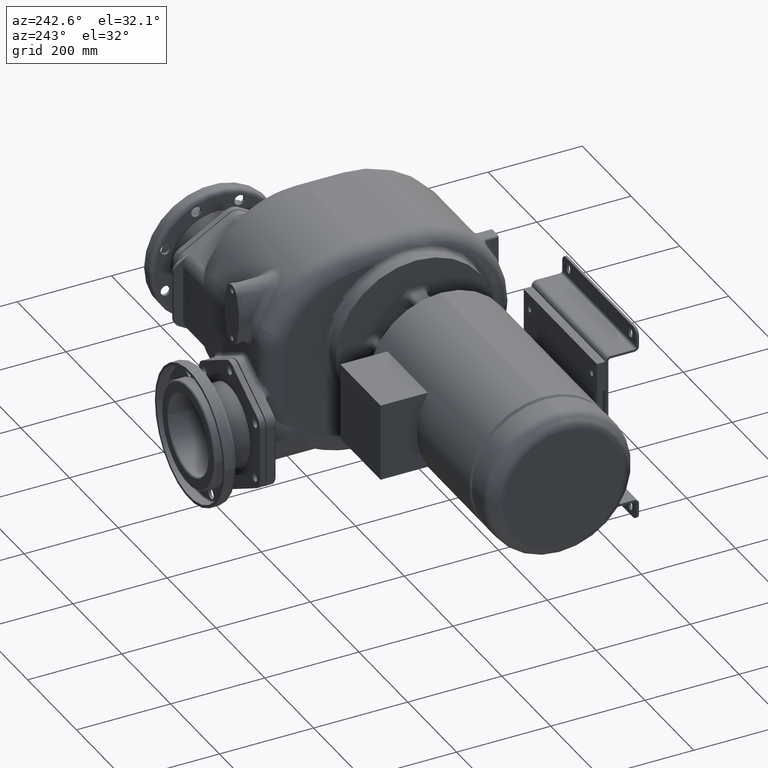
[diagram: clean part render]
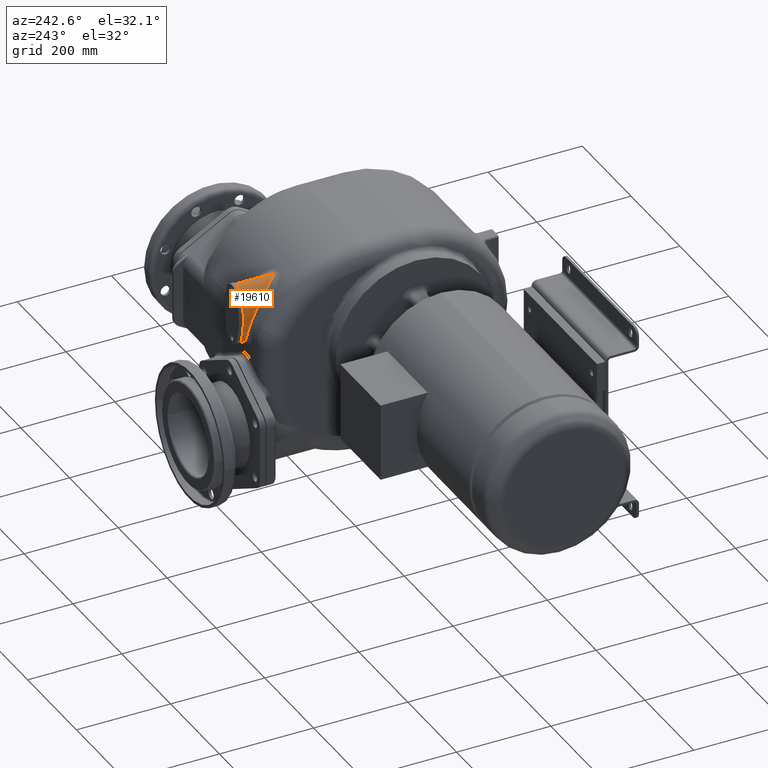
[diagram: same view with one face highlighted and labeled with its STEP entity id]
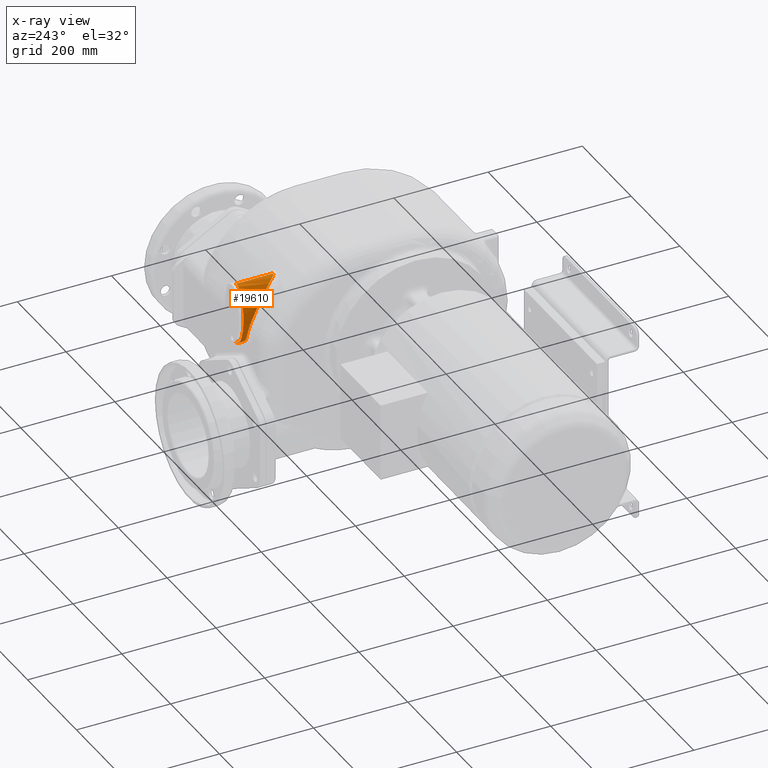
[diagram: x-ray of the same camera — body ghosted, the highlighted face saturated]
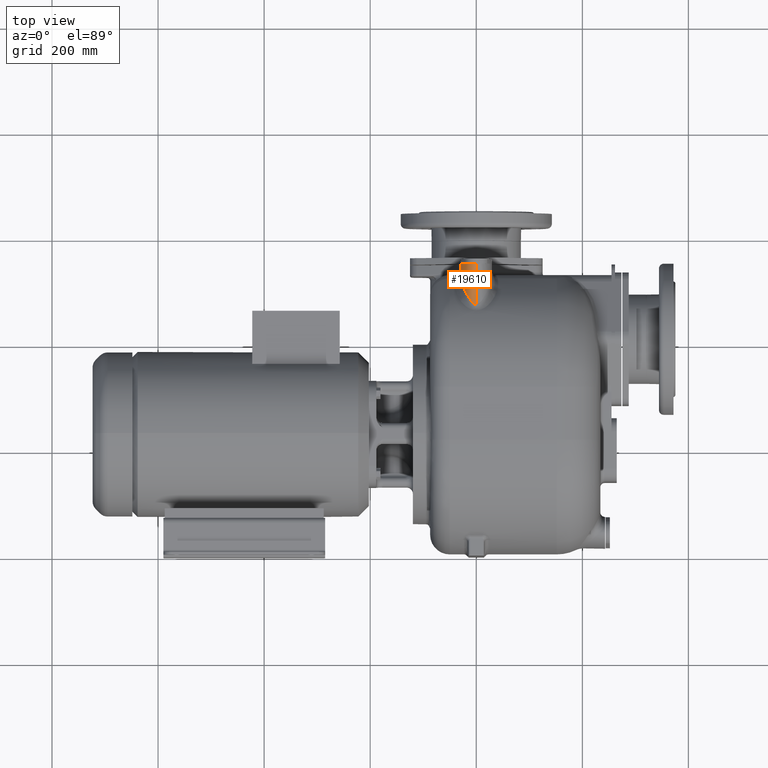
[diagram: same view with one face highlighted and labeled with its STEP entity id]
A machine part, auxiliary view. The second image highlights one B-rep face of the part: STEP entity #19610.
The next image is the same camera in x-ray: the body ghosted, the highlighted face saturated — about 0% of this face is hidden behind the body in this view.
A second angle (top view) of the same face is appended — the face is thin or edge-on in the first view.
In plain terms, the highlighted face is a SurfaceOfExtrusion surface.
Its self-contained STEP definition (entity closure, byte-faithful):
#6510=DIRECTION('',(0.E0,-1.E0,0.E0));
#6511=VECTOR('',#6510,7.818418743185E1);
#6512=CARTESIAN_POINT('',(0.E0,5.5E2,1.44E2));
#6513=LINE('',#6512,#6511);
#6686=CARTESIAN_POINT('',(1.1E2,5.5E2,7.899E1));
#6687=DIRECTION('',(0.E0,1.E0,0.E0));
#6688=DIRECTION('',(-9.980007640518E-1,0.E0,-6.320185877065E-2));
#6689=AXIS2_PLACEMENT_3D('',#6686,#6687,#6688);
#6691=CARTESIAN_POINT('',(-2.942914772399E1,5.5E2,9.161983629991E1));
#6692=CARTESIAN_POINT('',(-2.892675079165E1,5.5E2,9.711974077237E1));
#6693=CARTESIAN_POINT('',(-2.729719698755E1,5.5E2,1.076332457762E2));
#6694=CARTESIAN_POINT('',(-2.299069227191E1,5.5E2,1.219540144419E2));
#6695=CARTESIAN_POINT('',(-1.759648363303E1,5.5E2,1.324826489586E2));
#6696=CARTESIAN_POINT('',(-1.144539888780E1,5.5E2,1.394766608294E2));
#6697=CARTESIAN_POINT('',(-7.423824884960E0,5.5E2,1.422372896684E2));
#6698=CARTESIAN_POINT('',(-4.819624215667E0,5.5E2,1.431556996232E2));
#6700=CARTESIAN_POINT('',(-2.980276015366E1,5.327603322106E2,7.155867891668E1));
#6701=CARTESIAN_POINT('',(-2.984181336860E1,5.324571179187E2,7.229294042404E1));
#6702=CARTESIAN_POINT('',(-2.990825984335E1,5.318413009420E2,7.376244519194E1));
#6703=CARTESIAN_POINT('',(-2.997310292944E1,5.308893100200E2,7.596761138442E1));
#6704=CARTESIAN_POINT('',(-3.000327531571E1,5.299099058500E2,7.816960013735E1));
#6705=CARTESIAN_POINT('',(-2.999906731557E1,5.289038134769E2,8.036498682703E1));
#6706=CARTESIAN_POINT('',(-2.996085890391E1,5.278719041890E2,8.255035201785E1));
#6707=CARTESIAN_POINT('',(-2.988912493039E1,5.268151254800E2,8.472235337604E1));
#6708=CARTESIAN_POINT('',(-2.978442458022E1,5.257345144713E2,8.687783651098E1));
#6709=CARTESIAN_POINT('',(-2.964738873398E1,5.246311395113E2,8.901384289586E1));
#6710=CARTESIAN_POINT('',(-2.947872815919E1,5.235061855625E2,9.112741613059E1));
#6711=CARTESIAN_POINT('',(-2.927919365408E1,5.223607937166E2,9.321603415879E1));
#6712=CARTESIAN_POINT('',(-2.904957718121E1,5.211961129303E2,9.527733482950E1));
#6713=CARTESIAN_POINT('',(-2.879072330873E1,5.200133847464E2,9.730900004536E1));
#6714=CARTESIAN_POINT('',(-2.850350132432E1,5.188138749008E2,9.930895007738E1));
#6715=CARTESIAN_POINT('',(-2.818882751782E1,5.175989035639E2,1.012751300682E2));
#6716=CARTESIAN_POINT('',(-2.784764412670E1,5.163698269975E2,1.032056623192E2));
#6717=CARTESIAN_POINT('',(-2.748086873687E1,5.151279109352E2,1.050990439446E2));
#6718=CARTESIAN_POINT('',(-2.708945136082E1,5.138744463894E2,1.069537698237E2));
#6719=CARTESIAN_POINT('',(-2.667436958679E1,5.126108610604E2,1.087683886317E2));
#6720=CARTESIAN_POINT('',(-2.623664049613E1,5.113386892949E2,1.105414633192E2));
#6721=CARTESIAN_POINT('',(-2.577731577526E1,5.100594635565E2,1.122716132647E2));
#6722=CARTESIAN_POINT('',(-2.529748984771E1,5.087748727803E2,1.139574959974E2));
#6723=CARTESIAN_POINT('',(-2.479830701686E1,5.074866426512E2,1.155978015506E2));
#6724=CARTESIAN_POINT('',(-2.428095859508E1,5.061965334809E2,1.171912851316E2));
#6725=CARTESIAN_POINT('',(-2.374662593377E1,5.049063000506E2,1.187369347298E2));
#6726=CARTESIAN_POINT('',(-2.319655508855E1,5.036177252517E2,1.202337368032E2));
#6727=CARTESIAN_POINT('',(-2.263197754231E1,5.023325158152E2,1.216809169095E2));
#6728=CARTESIAN_POINT('',(-2.205394669988E1,5.010520066074E2,1.230782734664E2));
#6729=CARTESIAN_POINT('',(-2.146359182139E1,4.997775785796E2,1.244254870621E2));
#6730=CARTESIAN_POINT('',(-2.086192838155E1,4.985105005336E2,1.257225800570E2));
#6731=CARTESIAN_POINT('',(-2.024986983191E1,4.972519121350E2,1.269698088666E2));
#6732=CARTESIAN_POINT('',(-1.962837652299E1,4.960029251965E2,1.281673465619E2));
#6733=CARTESIAN_POINT('',(-1.899828010939E1,4.947646737449E2,1.293156277092E2));
#6734=CARTESIAN_POINT('',(-1.836042041408E1,4.935382336508E2,1.304150579164E2));
#6735=CARTESIAN_POINT('',(-1.771560030634E1,4.923246819821E2,1.314661085343E2));
#6736=CARTESIAN_POINT('',(-1.706450084172E1,4.911252124576E2,1.324694316268E2));
#6737=CARTESIAN_POINT('',(-1.640781025517E1,4.899408217480E2,1.334256299375E2));
#6738=CARTESIAN_POINT('',(-1.574642965241E1,4.887733799426E2,1.343350022924E2));
#6739=CARTESIAN_POINT('',(-1.508139182097E1,4.876248381516E2,1.351977416579E2));
#6740=CARTESIAN_POINT('',(-1.441385246225E1,4.864975405490E2,1.360139858966E2));
#6741=CARTESIAN_POINT('',(-1.374530175119E1,4.853944287469E2,1.367836315204E2));
#6742=CARTESIAN_POINT('',(-1.307732355847E1,4.843185306113E2,1.375066849650E2));
#6743=CARTESIAN_POINT('',(-1.241211718966E1,4.832740682813E2,1.381827736175E2));
#6744=CARTESIAN_POINT('',(-1.175205218514E1,4.822651814508E2,1.388117305957E2));
#6745=CARTESIAN_POINT('',(-1.110043195377E1,4.812975858339E2,1.393929558596E2));
#6746=CARTESIAN_POINT('',(-1.046101314678E1,4.803769135038E2,1.399260633070E2));
#6747=CARTESIAN_POINT('',(-9.837793446564E0,4.795089974753E2,1.404110808873E2));
#6748=CARTESIAN_POINT('',(-9.235404259614E0,4.786994391295E2,1.408482138952E2));
#6749=CARTESIAN_POINT('',(-8.656939123607E0,4.779512702810E2,1.412393031133E2));
#6750=CARTESIAN_POINT('',(-8.105924729464E0,4.772670259840E2,1.415862057080E2));
#6751=CARTESIAN_POINT('',(-7.583185117066E0,4.766453989930E2,1.418925955310E2));
#6752=CARTESIAN_POINT('',(-7.089778131690E0,4.760847432101E2,1.421618079012E2));
#6753=CARTESIAN_POINT('',(-6.624656634211E0,4.755810063352E2,1.423980596751E2));
#6754=CARTESIAN_POINT('',(-6.186813384457E0,4.751298562037E2,1.426050860637E2));
#6755=CARTESIAN_POINT('',(-5.774455986600E0,4.747267189273E2,1.427865737748E2));
#6756=CARTESIAN_POINT('',(-5.385610676881E0,4.743665763231E2,1.429458297848E2));
#6757=CARTESIAN_POINT('',(-5.018308189626E0,4.740452231093E2,1.430857474173E2));
#6758=CARTESIAN_POINT('',(-4.670680364855E0,4.737584717195E2,1.432088251513E2));
#6759=CARTESIAN_POINT('',(-4.340578274231E0,4.735024236572E2,1.433173316435E2));
#6760=CARTESIAN_POINT('',(-4.026624510528E0,4.732740737703E2,1.434130058055E2));
#6761=CARTESIAN_POINT('',(-3.726919026015E0,4.730702818816E2,1.434975271929E2));
#6762=CARTESIAN_POINT('',(-3.440028796579E0,4.728884887549E2,1.435722221977E2));
#6763=CARTESIAN_POINT('',(-3.164859321322E0,4.727266591521E2,1.436381781347E2));
#6764=CARTESIAN_POINT('',(-2.899896837693E0,4.725826845095E2,1.436964406436E2));
#6765=CARTESIAN_POINT('',(-2.644220658159E0,4.724549028223E2,1.437477915105E2));
#6766=CARTESIAN_POINT('',(-2.396812269487E0,4.723419443726E2,1.437929417839E2));
#6767=CARTESIAN_POINT('',(-2.156522891514E0,4.722424021403E2,1.438325252326E2));
#6768=CARTESIAN_POINT('',(-1.922812816933E0,4.721552849214E2,1.438669965413E2));
#6769=CARTESIAN_POINT('',(-1.694944229138E0,4.720797512243E2,1.438967891531E2));
#6770=CARTESIAN_POINT('',(-1.472156103357E0,4.720148741764E2,1.439222784815E2));
#6771=CARTESIAN_POINT('',(-1.253655756819E0,4.719599573463E2,1.439437879007E2));
#6772=CARTESIAN_POINT('',(-1.038416859427E0,4.719144079435E2,1.439616007389E2));
#6773=CARTESIAN_POINT('',(-8.259149421599E-1,4.718777421530E2,
1.439758999473E2));
#6774=CARTESIAN_POINT('',(-6.160504716472E-1,4.718497059020E2,
1.439868180095E2));
#6775=CARTESIAN_POINT('',(-4.085678256459E-1,4.718300079735E2,
1.439944843742E2));
#6776=CARTESIAN_POINT('',(-2.032524147134E-1,4.718183559995E2,
1.439990111706E2));
#6777=CARTESIAN_POINT('',(-6.753975180934E-2,4.718158124386E2,
1.439999999574E2));
#6778=CARTESIAN_POINT('',(0.E0,4.718158125682E2,1.44E2));
#6780=CARTESIAN_POINT('',(-2.318278205836E1,5.388098131825E2,3.774456059101E1));
#6781=CARTESIAN_POINT('',(-2.333480329890E1,5.388263534985E2,3.814558746225E1));
#6782=CARTESIAN_POINT('',(-2.363436893442E1,5.388533827406E2,3.895540822590E1));
#6783=CARTESIAN_POINT('',(-2.407021794291E1,5.388748843497E2,4.019327572087E1));
#6784=CARTESIAN_POINT('',(-2.449181533988E1,5.388764064837E2,4.145206877779E1));
#6785=CARTESIAN_POINT('',(-2.489869151958E1,5.388570945872E2,4.273010745548E1));
#6786=CARTESIAN_POINT('',(-2.529042307577E1,5.388162152540E2,4.402565555816E1));
#6787=CARTESIAN_POINT('',(-2.566664984010E1,5.387530685770E2,4.533696015055E1));
#6788=CARTESIAN_POINT('',(-2.602712424398E1,5.386670342008E2,4.666245626003E1));
#6789=CARTESIAN_POINT('',(-2.637170855068E1,5.385575583599E2,4.800083222288E1));
#6790=CARTESIAN_POINT('',(-2.670028421997E1,5.384240960617E2,4.935073084882E1));
#6791=CARTESIAN_POINT('',(-2.701277293730E1,5.382661882885E2,5.071083058415E1));
#6792=CARTESIAN_POINT('',(-2.730912764479E1,5.380834285977E2,5.207982384494E1));
#6793=CARTESIAN_POINT('',(-2.758932908375E1,5.378754288557E2,5.345640499074E1));
#6794=CARTESIAN_POINT('',(-2.785340620550E1,5.376418722377E2,5.483938735637E1));
#6795=CARTESIAN_POINT('',(-2.810141054514E1,5.373824637880E2,5.622760293095E1));
#6796=CARTESIAN_POINT('',(-2.833341687482E1,5.370969327690E2,5.761990788659E1));
#6797=CARTESIAN_POINT('',(-2.854954006254E1,5.367850559691E2,5.901530976681E1));
#6798=CARTESIAN_POINT('',(-2.874990486401E1,5.364466116855E2,6.041281184745E1));
#6799=CARTESIAN_POINT('',(-2.893465228515E1,5.360814070512E2,6.181145217485E1));
#6800=CARTESIAN_POINT('',(-2.910393999139E1,5.356892954156E2,6.321032397529E1));
#6801=CARTESIAN_POINT('',(-2.925793391314E1,5.352701232529E2,6.460851746670E1));
#6802=CARTESIAN_POINT('',(-2.939681345822E1,5.348237720005E2,6.600516535585E1));
#6803=CARTESIAN_POINT('',(-2.952076877239E1,5.343501497338E2,6.739943293753E1));
#6804=CARTESIAN_POINT('',(-2.962999757795E1,5.338491555379E2,6.879048763263E1));
#6805=CARTESIAN_POINT('',(-2.972470592409E1,5.333207468190E2,7.017750254799E1));
#6806=CARTESIAN_POINT('',(-2.977830603842E1,5.329501928862E2,7.109890920482E1));
#6807=CARTESIAN_POINT('',(-2.980276015366E1,5.327603322106E2,7.155867891668E1));
#6809=CARTESIAN_POINT('',(0.E0,5.380005856711E2,1.4E1));
#6810=CARTESIAN_POINT('',(-1.484704678114E-1,5.380003697857E2,
1.400000023231E1));
#6811=CARTESIAN_POINT('',(-4.455869345889E-1,5.380000471032E2,
1.400477767193E1));
#6812=CARTESIAN_POINT('',(-8.914813298439E-1,5.379998883466E2,
1.402630591560E1));
#6813=CARTESIAN_POINT('',(-1.338121580646E0,5.380000521207E2,1.406227818398E1));
#6814=CARTESIAN_POINT('',(-1.785815663958E0,5.380005398978E2,1.411283315115E1));
#6815=CARTESIAN_POINT('',(-2.234925963442E0,5.380013564583E2,1.417816522185E1));
#6816=CARTESIAN_POINT('',(-2.685771105825E0,5.380025082432E2,1.425851956949E1));
#6817=CARTESIAN_POINT('',(-3.138716835823E0,5.380040069706E2,1.435420589405E1));
#6818=CARTESIAN_POINT('',(-3.594061751351E0,5.380058649168E2,1.446557815173E1));
#6819=CARTESIAN_POINT('',(-4.052162559817E0,5.380081001893E2,1.459306104326E1));
#6820=CARTESIAN_POINT('',(-4.513370319311E0,5.380107329429E2,1.473714341009E1));
#6821=CARTESIAN_POINT('',(-4.977983225639E0,5.380137876043E2,1.489835998768E1));
#6822=CARTESIAN_POINT('',(-5.446372131646E0,5.380172933853E2,1.507733732528E1));
#6823=CARTESIAN_POINT('',(-5.918798370297E0,5.380212813952E2,1.527472997610E1));
#6824=CARTESIAN_POINT('',(-6.395598231856E0,5.380257908524E2,1.549129031419E1));
#6825=CARTESIAN_POINT('',(-6.877083219058E0,5.380308619047E2,1.572783907714E1));
#6826=CARTESIAN_POINT('',(-7.363495194736E0,5.380365431806E2,1.598523701697E1));
#6827=CARTESIAN_POINT('',(-7.855175472526E0,5.380428871657E2,1.626447915115E1));
#6828=CARTESIAN_POINT('',(-8.352326573620E0,5.380499508411E2,1.656657037863E1));
#6829=CARTESIAN_POINT('',(-8.855216428369E0,5.380578014832E2,1.689263838914E1));
#6830=CARTESIAN_POINT('',(-9.364092844477E0,5.380665066766E2,1.724389845963E1));
#6831=CARTESIAN_POINT('',(-9.879096990876E0,5.380761465992E2,1.762158748024E1));
#6832=CARTESIAN_POINT('',(-1.040047612803E1,5.380868042462E2,1.802712264953E1));
#6833=CARTESIAN_POINT('',(-1.092833484197E1,5.380985693465E2,1.846192619507E1));
#6834=CARTESIAN_POINT('',(-1.146278639385E1,5.381115431290E2,1.892753471779E1));
#6835=CARTESIAN_POINT('',(-1.200395207455E1,5.381258257901E2,1.942561880049E1));
#6836=CARTESIAN_POINT('',(-1.255180362336E1,5.381415318571E2,1.995783807525E1));
#6837=CARTESIAN_POINT('',(-1.310638279117E1,5.381587772674E2,2.052604885696E1));
#6838=CARTESIAN_POINT('',(-1.366762662024E1,5.381776829422E2,2.113215056813E1));
#6839=CARTESIAN_POINT('',(-1.423538176947E1,5.381983809972E2,2.177808729461E1));
#6840=CARTESIAN_POINT('',(-1.480948761239E1,5.382209967148E2,2.246594737661E1));
#6841=CARTESIAN_POINT('',(-1.538964429551E1,5.382456666667E2,2.319781337151E1));
#6842=CARTESIAN_POINT('',(-1.597549813048E1,5.382725253806E2,2.397585618836E1));
#6843=CARTESIAN_POINT('',(-1.656662124967E1,5.383017034511E2,2.480231776542E1));
#6844=CARTESIAN_POINT('',(-1.716246801526E1,5.383333380267E2,2.567944751823E1));
#6845=CARTESIAN_POINT('',(-1.776240602369E1,5.383675543971E2,2.660953980832E1));
#6846=CARTESIAN_POINT('',(-1.836569842123E1,5.384044777676E2,2.759490535961E1));
#6847=CARTESIAN_POINT('',(-1.897150941368E1,5.384442265499E2,2.863787663924E1));
#6848=CARTESIAN_POINT('',(-1.957887255130E1,5.384869101717E2,2.974074404514E1));
#6849=CARTESIAN_POINT('',(-2.018676722850E1,5.385326346825E2,3.090589272838E1));
#6850=CARTESIAN_POINT('',(-2.079392712561E1,5.385814823518E2,3.213543537379E1));
#6851=CARTESIAN_POINT('',(-2.139880833988E1,5.386335195279E2,3.343104373181E1));
#6852=CARTESIAN_POINT('',(-2.199986233480E1,5.386887932580E2,3.479446821703E1));
#6853=CARTESIAN_POINT('',(-2.259549955773E1,5.387473497615E2,3.622747978604E1));
#6854=CARTESIAN_POINT('',(-2.298801620165E1,5.387886214141E2,3.723077671034E1));
#6855=CARTESIAN_POINT('',(-2.318278205836E1,5.388098131825E2,3.774456059101E1));
#6857=DIRECTION('',(0.E0,-1.E0,0.E0));
#6858=VECTOR('',#6857,1.199941432885E1);
#6859=CARTESIAN_POINT('',(0.E0,5.5E2,1.4E1));
#6860=LINE('',#6859,#6858);
#6861=CARTESIAN_POINT('',(-4.661031843370E0,5.5E2,1.478931419317E1));
#6862=CARTESIAN_POINT('',(-7.469498497689E0,5.5E2,1.574635011062E1));
#6863=CARTESIAN_POINT('',(-1.170241659142E1,5.5E2,1.871887681087E1));
#6864=CARTESIAN_POINT('',(-1.810755102360E1,5.5E2,2.623989539974E1));
#6865=CARTESIAN_POINT('',(-2.361455544976E1,5.5E2,3.755264798360E1));
#6866=CARTESIAN_POINT('',(-2.787576372243E1,5.5E2,5.292301959127E1));
#6867=CARTESIAN_POINT('',(-2.934410029537E1,5.5E2,6.421955860579E1));
#6868=CARTESIAN_POINT('',(-2.972010696724E1,5.5E2,7.014173977202E1));
#6890=CARTESIAN_POINT('',(-4.819624215667E0,5.5E2,1.431556996232E2));
#6891=CARTESIAN_POINT('',(-3.259110254071E0,5.5E2,1.437060379952E2));
#6892=CARTESIAN_POINT('',(-1.654713312965E0,5.5E2,1.44E2));
#6893=CARTESIAN_POINT('',(0.E0,5.5E2,1.44E2));
#6910=CARTESIAN_POINT('',(0.E0,5.5E2,1.4E1));
#6911=CARTESIAN_POINT('',(-1.597275208009E0,5.5E2,1.4E1));
#6912=CARTESIAN_POINT('',(-3.149129506065E0,5.5E2,1.427410606767E1));
#6913=CARTESIAN_POINT('',(-4.661031843369E0,5.5E2,1.478931419317E1));
#10919=VERTEX_POINT('',#6700);
#10920=VERTEX_POINT('',#6778);
#10923=CARTESIAN_POINT('',(0.E0,5.5E2,1.4E1));
#10924=CARTESIAN_POINT('',(0.E0,5.380005856711E2,1.4E1));
#10925=VERTEX_POINT('',#10923);
#10926=VERTEX_POINT('',#10924);
#10927=CARTESIAN_POINT('',(0.E0,5.5E2,1.44E2));
#10928=VERTEX_POINT('',#10927);
#11023=VERTEX_POINT('',#6855);
#11757=CARTESIAN_POINT('',(-4.819624215667E0,5.5E2,1.431556996232E2));
#11759=VERTEX_POINT('',#11757);
#11762=CARTESIAN_POINT('',(-4.661031843369E0,5.5E2,1.478931419317E1));
#11764=VERTEX_POINT('',#11762);
#11765=CARTESIAN_POINT('',(-2.972010696725E1,5.5E2,7.014173977211E1));
#11766=CARTESIAN_POINT('',(-2.942914772399E1,5.5E2,9.161983629993E1));
#11767=VERTEX_POINT('',#11765);
#11768=VERTEX_POINT('',#11766);
#19586=CARTESIAN_POINT('',(0.E0,5.5E2,7.9E1));
#19587=DIRECTION('',(0.E0,1.E0,0.E0));
#19588=DIRECTION('',(0.E0,0.E0,-1.E0));
#19589=AXIS2_PLACEMENT_3D('',#19586,#19587,#19588);
#19591=DIRECTION('',(0.E0,1.E0,0.E0));
#19592=VECTOR('',#19591,1.E0);
#19593=SURFACE_OF_LINEAR_EXTRUSION('',#19590,#19592);
#19594=ORIENTED_EDGE('',*,*,#19361,.T.);
#19596=ORIENTED_EDGE('',*,*,#19595,.T.);
#19598=ORIENTED_EDGE('',*,*,#19597,.T.);
#19599=ORIENTED_EDGE('',*,*,#19302,.T.);
#19600=ORIENTED_EDGE('',*,*,#16469,.F.);
#19601=ORIENTED_EDGE('',*,*,#16538,.F.);
#19603=ORIENTED_EDGE('',*,*,#19602,.F.);
#19604=ORIENTED_EDGE('',*,*,#19296,.F.);
#19606=ORIENTED_EDGE('',*,*,#19605,.T.);
#19607=ORIENTED_EDGE('',*,*,#19579,.T.);
#19608=EDGE_LOOP('',(#19594,#19596,#19598,#19599,#19600,#19601,#19603,#19604,
#19606,#19607));
#19609=FACE_OUTER_BOUND('',#19608,.F.);
#19610=ADVANCED_FACE('',(#19609),#19593,.T.);
#6690=CIRCLE('',#6689,1.4E2);
#6699=B_SPLINE_CURVE_WITH_KNOTS('',3,(#6691,#6692,#6693,#6694,#6695,#6696,#6697,
#6698),.UNSPECIFIED.,.F.,.F.,(4,1,1,1,1,4),(0.E0,2.5E-1,5.E-1,7.5E-1,8.75E-1,
1.E0),.UNSPECIFIED.);
#6779=B_SPLINE_CURVE_WITH_KNOTS('',3,(#6700,#6701,#6702,#6703,#6704,#6705,#6706,
#6707,#6708,#6709,#6710,#6711,#6712,#6713,#6714,#6715,#6716,#6717,#6718,#6719,
#6720,#6721,#6722,#6723,#6724,#6725,#6726,#6727,#6728,#6729,#6730,#6731,#6732,
#6733,#6734,#6735,#6736,#6737,#6738,#6739,#6740,#6741,#6742,#6743,#6744,#6745,
#6746,#6747,#6748,#6749,#6750,#6751,#6752,#6753,#6754,#6755,#6756,#6757,#6758,
#6759,#6760,#6761,#6762,#6763,#6764,#6765,#6766,#6767,#6768,#6769,#6770,#6771,
#6772,#6773,#6774,#6775,#6776,#6777,#6778),.UNSPECIFIED.,.F.,.F.,(4,1,1,1,1,1,1,
1,1,1,1,1,1,1,1,1,1,1,1,1,1,1,1,1,1,1,1,1,1,1,1,1,1,1,1,1,1,1,1,1,1,1,1,1,1,1,1,
1,1,1,1,1,1,1,1,1,1,1,1,1,1,1,1,1,1,1,1,1,1,1,1,1,1,1,1,1,4),(0.E0,
1.315789473684E-2,2.631578947368E-2,3.947368421053E-2,5.263157894737E-2,
6.578947368421E-2,7.894736842105E-2,9.210526315789E-2,1.052631578947E-1,
1.184210526316E-1,1.315789473684E-1,1.447368421053E-1,1.578947368421E-1,
1.710526315789E-1,1.842105263158E-1,1.973684210526E-1,2.105263157895E-1,
2.236842105263E-1,2.368421052632E-1,2.5E-1,2.631578947368E-1,2.763157894737E-1,
2.894736842105E-1,3.026315789474E-1,3.157894736842E-1,3.289473684211E-1,
3.421052631579E-1,3.552631578947E-1,3.684210526316E-1,3.815789473684E-1,
3.947368421053E-1,4.078947368421E-1,4.210526315789E-1,4.342105263158E-1,
4.473684210526E-1,4.605263157895E-1,4.736842105263E-1,4.868421052632E-1,5.E-1,
5.131578947368E-1,5.263157894737E-1,5.394736842105E-1,5.526315789474E-1,
5.657894736842E-1,5.789473684211E-1,5.921052631579E-1,6.052631578947E-1,
6.184210526316E-1,6.315789473684E-1,6.447368421053E-1,6.578947368421E-1,
6.710526315789E-1,6.842105263158E-1,6.973684210526E-1,7.105263157895E-1,
7.236842105263E-1,7.368421052632E-1,7.5E-1,7.631578947368E-1,7.763157894737E-1,
7.894736842105E-1,8.026315789474E-1,8.157894736842E-1,8.289473684211E-1,
8.421052631579E-1,8.552631578947E-1,8.684210526316E-1,8.815789473684E-1,
8.947368421053E-1,9.078947368421E-1,9.210526315789E-1,9.342105263158E-1,
9.473684210526E-1,9.605263157895E-1,9.736842105263E-1,9.868421052632E-1,1.E0),
.UNSPECIFIED.);
#6808=B_SPLINE_CURVE_WITH_KNOTS('',3,(#6780,#6781,#6782,#6783,#6784,#6785,#6786,
#6787,#6788,#6789,#6790,#6791,#6792,#6793,#6794,#6795,#6796,#6797,#6798,#6799,
#6800,#6801,#6802,#6803,#6804,#6805,#6806,#6807),.UNSPECIFIED.,.F.,.F.,(4,1,1,1,
1,1,1,1,1,1,1,1,1,1,1,1,1,1,1,1,1,1,1,1,1,4),(0.E0,4.E-2,8.E-2,1.2E-1,1.6E-1,
2.E-1,2.4E-1,2.8E-1,3.2E-1,3.6E-1,4.E-1,4.4E-1,4.8E-1,5.2E-1,5.6E-1,6.E-1,
6.4E-1,6.8E-1,7.2E-1,7.6E-1,8.E-1,8.4E-1,8.8E-1,9.2E-1,9.6E-1,1.E0),
.UNSPECIFIED.);
#6856=B_SPLINE_CURVE_WITH_KNOTS('',3,(#6809,#6810,#6811,#6812,#6813,#6814,#6815,
#6816,#6817,#6818,#6819,#6820,#6821,#6822,#6823,#6824,#6825,#6826,#6827,#6828,
#6829,#6830,#6831,#6832,#6833,#6834,#6835,#6836,#6837,#6838,#6839,#6840,#6841,
#6842,#6843,#6844,#6845,#6846,#6847,#6848,#6849,#6850,#6851,#6852,#6853,#6854,
#6855),.UNSPECIFIED.,.F.,.F.,(4,1,1,1,1,1,1,1,1,1,1,1,1,1,1,1,1,1,1,1,1,1,1,1,1,
1,1,1,1,1,1,1,1,1,1,1,1,1,1,1,1,1,1,1,4),(0.E0,2.272727272727E-2,
4.545454545455E-2,6.818181818182E-2,9.090909090909E-2,1.136363636364E-1,
1.363636363636E-1,1.590909090909E-1,1.818181818182E-1,2.045454545455E-1,
2.272727272727E-1,2.5E-1,2.727272727273E-1,2.954545454545E-1,3.181818181818E-1,
3.409090909091E-1,3.636363636364E-1,3.863636363636E-1,4.090909090909E-1,
4.318181818182E-1,4.545454545455E-1,4.772727272727E-1,5.E-1,5.227272727273E-1,
5.454545454545E-1,5.681818181818E-1,5.909090909091E-1,6.136363636364E-1,
6.363636363636E-1,6.590909090909E-1,6.818181818182E-1,7.045454545455E-1,
7.272727272727E-1,7.5E-1,7.727272727273E-1,7.954545454545E-1,8.181818181818E-1,
8.409090909091E-1,8.636363636364E-1,8.863636363636E-1,9.090909090909E-1,
9.318181818182E-1,9.545454545455E-1,9.772727272727E-1,1.E0),.UNSPECIFIED.);
#6869=B_SPLINE_CURVE_WITH_KNOTS('',3,(#6861,#6862,#6863,#6864,#6865,#6866,#6867,
#6868),.UNSPECIFIED.,.F.,.F.,(4,1,1,1,1,4),(0.E0,1.25E-1,2.5E-1,5.E-1,7.5E-1,
1.E0),.UNSPECIFIED.);
#6894=B_SPLINE_CURVE_WITH_KNOTS('',3,(#6890,#6891,#6892,#6893),.UNSPECIFIED.,
.F.,.F.,(4,4),(0.E0,1.E0),.UNSPECIFIED.);
#6914=B_SPLINE_CURVE_WITH_KNOTS('',3,(#6910,#6911,#6912,#6913),.UNSPECIFIED.,
.F.,.F.,(4,4),(0.E0,1.E0),.UNSPECIFIED.);
#16469=EDGE_CURVE('',#10919,#10920,#6779,.T.);
#16538=EDGE_CURVE('',#11023,#10919,#6808,.T.);
#19296=EDGE_CURVE('',#10925,#10926,#6860,.T.);
#19302=EDGE_CURVE('',#10928,#10920,#6513,.T.);
#19361=EDGE_CURVE('',#11767,#11768,#6690,.T.);
#19579=EDGE_CURVE('',#11764,#11767,#6869,.T.);
#19590=ELLIPSE('',#19589,6.5E1,3.E1);
#19595=EDGE_CURVE('',#11768,#11759,#6699,.T.);
#19597=EDGE_CURVE('',#11759,#10928,#6894,.T.);
#19602=EDGE_CURVE('',#10926,#11023,#6856,.T.);
#19605=EDGE_CURVE('',#10925,#11764,#6914,.T.);